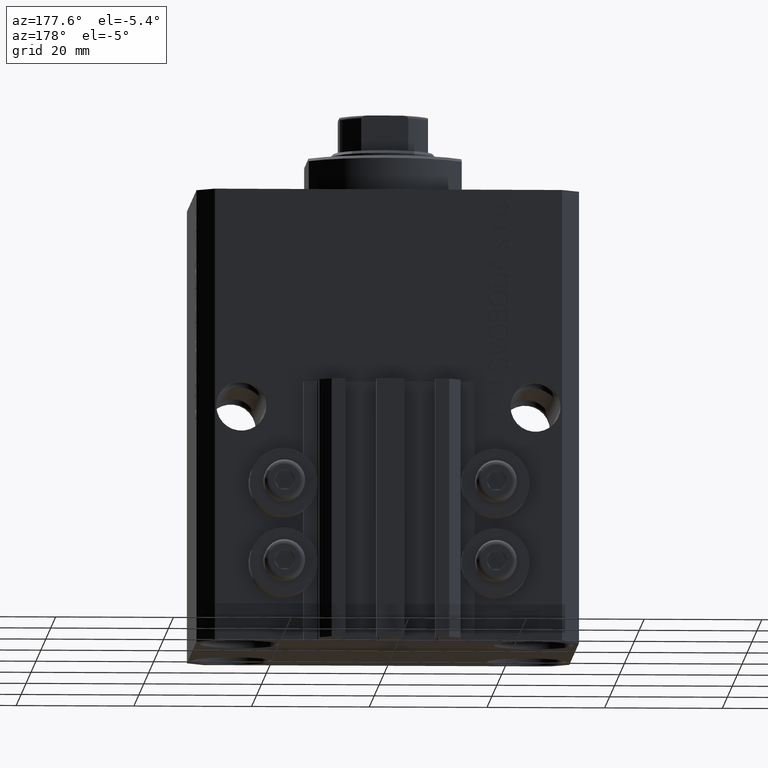
[diagram: clean part render]
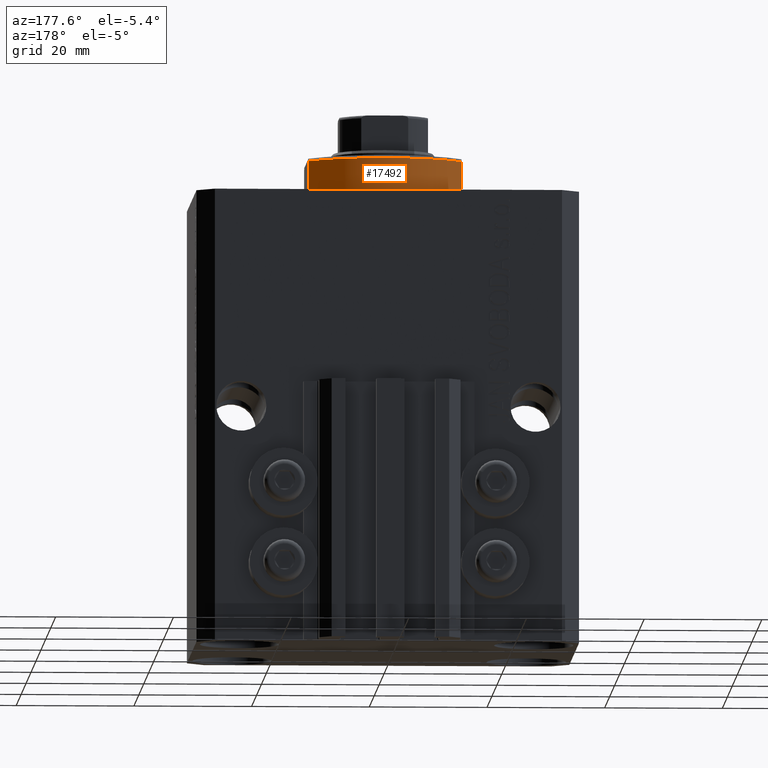
[diagram: same view with one face highlighted and labeled with its STEP entity id]
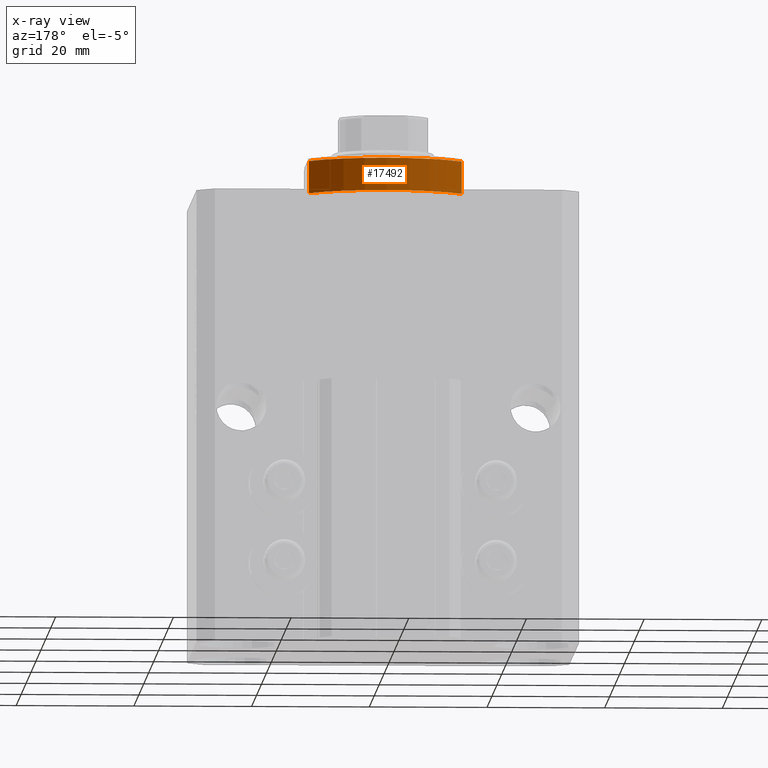
[diagram: x-ray of the same camera — body ghosted, the highlighted face saturated]
A machine part, auxiliary view. The second image highlights one B-rep face of the part: STEP entity #17492.
The next image is the same camera in x-ray: the body ghosted, the highlighted face saturated — about 0% of this face is hidden behind the body in this view.
In plain terms, the highlighted cylindrical surface (partial cylindrical patch) has radius 16 mm, axis along (0, 0, -1).
Its self-contained STEP definition (entity closure, byte-faithful):
#5076 = AXIS2_PLACEMENT_3D ( 'NONE', #10066, #35123, #42031 ) ;
#7380 = VERTEX_POINT ( 'NONE', #30364 ) ;
#7424 = VECTOR ( 'NONE', #24391, 1000.000000000000000 ) ;
#8172 = EDGE_CURVE ( 'NONE', #42438, #20660, #20908, .T. ) ;
#9836 = CARTESIAN_POINT ( 'NONE',  ( -13.00000000000000000, 9.327379053088813876, -6.500000000000000000 ) ) ;
#10066 = CARTESIAN_POINT ( 'NONE',  ( 0.000000000000000000, 0.000000000000000000, -6.500000000000000000 ) ) ;
#11323 = CIRCLE ( 'NONE', #37993, 16.00000000000000000 ) ;
#12130 = EDGE_LOOP ( 'NONE', ( #15480, #30060, #15353, #36904 ) ) ;
#14524 = DIRECTION ( 'NONE',  ( -1.000000000000000000, 0.000000000000000000, 0.000000000000000000 ) ) ;
#15271 = CARTESIAN_POINT ( 'NONE',  ( 13.00000000000000000, 9.327379053088813876, -6.500000000000000000 ) ) ;
#15353 = ORIENTED_EDGE ( 'NONE', *, *, #20260, .T. ) ;
#15480 = ORIENTED_EDGE ( 'NONE', *, *, #26865, .F. ) ;
#16259 = DIRECTION ( 'NONE',  ( 1.000000000000000000, -8.881784197001252323E-16, 0.000000000000000000 ) ) ;
#17492 = ADVANCED_FACE ( 'NONE', ( #28213 ), #42746, .T. ) ;
#17857 = VECTOR ( 'NONE', #29844, 1000.000000000000000 ) ;
#19368 = AXIS2_PLACEMENT_3D ( 'NONE', #39343, #43386, #14524 ) ;
#20260 = EDGE_CURVE ( 'NONE', #20660, #27171, #31099, .T. ) ;
#20660 = VERTEX_POINT ( 'NONE', #34838 ) ;
#20908 = CIRCLE ( 'NONE', #19368, 16.00000000000000000 ) ;
#22951 = DIRECTION ( 'NONE',  ( -0.000000000000000000, -0.000000000000000000, -1.000000000000000000 ) ) ;
#24391 = DIRECTION ( 'NONE',  ( -0.000000000000000000, -0.000000000000000000, 1.000000000000000000 ) ) ;
#26247 = LINE ( 'NONE', #15271, #17857 ) ;
#26865 = EDGE_CURVE ( 'NONE', #42438, #7380, #26247, .T. ) ;
#27171 = VERTEX_POINT ( 'NONE', #36690 ) ;
#28213 = FACE_OUTER_BOUND ( 'NONE', #12130, .T. ) ;
#29844 = DIRECTION ( 'NONE',  ( -0.000000000000000000, -0.000000000000000000, 1.000000000000000000 ) ) ;
#30060 = ORIENTED_EDGE ( 'NONE', *, *, #8172, .T. ) ;
#30364 = CARTESIAN_POINT ( 'NONE',  ( 13.00000000000000000, 9.327379053088815652, -0.4999999999999995559 ) ) ;
#31099 = LINE ( 'NONE', #9836, #7424 ) ;
#34838 = CARTESIAN_POINT ( 'NONE',  ( -13.00000000000000000, 9.327379053088916905, -6.000000000000014211 ) ) ;
#35123 = DIRECTION ( 'NONE',  ( -0.000000000000000000, -0.000000000000000000, 1.000000000000000000 ) ) ;
#36690 = CARTESIAN_POINT ( 'NONE',  ( -13.00000000000000000, 9.327379053088815652, -0.4999999999999995559 ) ) ;
#36904 = ORIENTED_EDGE ( 'NONE', *, *, #41508, .T. ) ;
#37271 = CARTESIAN_POINT ( 'NONE',  ( 0.000000000000000000, 0.000000000000000000, -0.4999999999999995559 ) ) ;
#37993 = AXIS2_PLACEMENT_3D ( 'NONE', #37271, #22951, #16259 ) ;
#39343 = CARTESIAN_POINT ( 'NONE',  ( 0.000000000000000000, 0.000000000000000000, -6.000000000000023981 ) ) ;
#41508 = EDGE_CURVE ( 'NONE', #27171, #7380, #11323, .T. ) ;
#42031 = DIRECTION ( 'NONE',  ( 1.000000000000000000, 0.000000000000000000, 0.000000000000000000 ) ) ;
#42438 = VERTEX_POINT ( 'NONE', #47079 ) ;
#42746 = CYLINDRICAL_SURFACE ( 'NONE', #5076, 16.00000000000000000 ) ;
#43386 = DIRECTION ( 'NONE',  ( 0.000000000000000000, 0.000000000000000000, 1.000000000000000000 ) ) ;
#47079 = CARTESIAN_POINT ( 'NONE',  ( 13.00000000000000000, 9.327379053088916905, -6.000000000000014211 ) ) ;